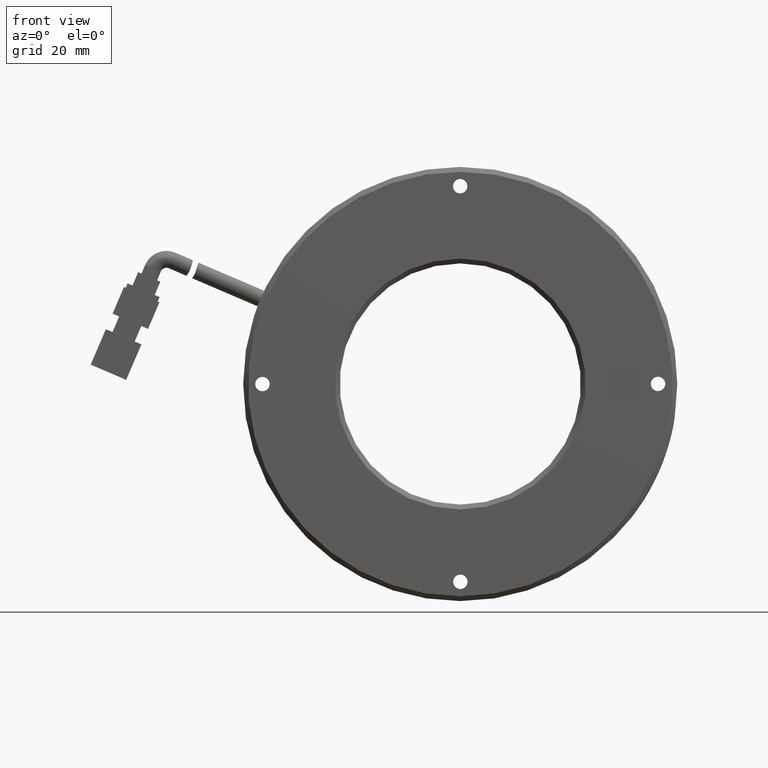
[diagram: clean part render]
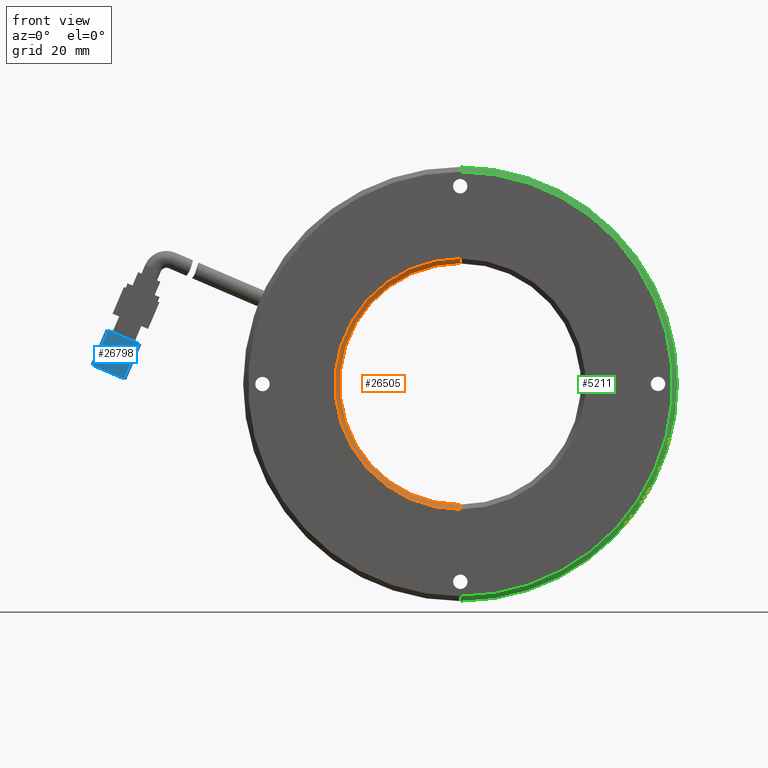
[diagram: same view with three faces highlighted in distinct colors, each labeled with its STEP entity id]
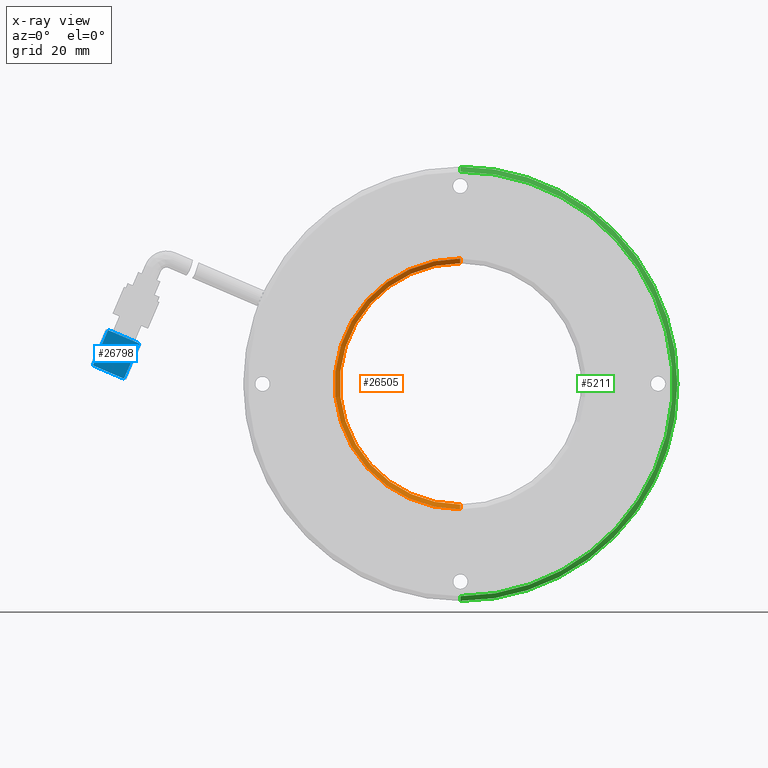
[diagram: x-ray of the same camera — body ghosted, the three highlighted faces saturated]
A machine part, front view with three faces highlighted in distinct colors.
The next image is the same camera in x-ray (body ghosted, the three faces saturated) — at least one of them is partly hidden behind the body in this view.
Their STEP definitions:

[orange] entity #26505 — the highlighted conical surface has half-angle 45 deg.
#1203 = CARTESIAN_POINT ( 'NONE',  ( 3.571428571428565800, -0.3764478764478815200, 0.0000000000000000000 ) ) ;
#1392 = DIRECTION ( 'NONE',  ( 8.659560562354857700E-017, -0.7071067811865536800, 0.7071067811865414700 ) ) ;
#2200 = CARTESIAN_POINT ( 'NONE',  ( 3.571428571428565800, -0.3764478764478824100, -25.00000000000000000 ) ) ;
#3245 = EDGE_LOOP ( 'NONE', ( #9136, #34782, #26172, #6424 ) ) ;
#3345 = VERTEX_POINT ( 'NONE', #2200 ) ;
#4046 = AXIS2_PLACEMENT_3D ( 'NONE', #11362, #33414, #14530 ) ;
#4349 = DIRECTION ( 'NONE',  ( 0.0000000000000000000, -3.469446951953614200E-017, -1.000000000000000000 ) ) ;
#6140 = DIRECTION ( 'NONE',  ( 0.0000000000000000000, 0.0000000000000000000, -1.000000000000000000 ) ) ;
#6424 = ORIENTED_EDGE ( 'NONE', *, *, #23720, .F. ) ;
#9136 = ORIENTED_EDGE ( 'NONE', *, *, #27737, .F. ) ;
#9162 = DIRECTION ( 'NONE',  ( 0.0000000000000000000, -1.000000000000000000, 0.0000000000000000000 ) ) ;
#9466 = CARTESIAN_POINT ( 'NONE',  ( 3.571428571428565800, -1.376447876447879400, -25.99999999999998200 ) ) ;
#9866 = LINE ( 'NONE', #39361, #26625 ) ;
#11362 = CARTESIAN_POINT ( 'NONE',  ( 3.571428571428565800, -1.376447876447878900, 0.0000000000000000000 ) ) ;
#12610 = DIRECTION ( 'NONE',  ( 0.0000000000000000000, -0.7071067811865536800, -0.7071067811865414700 ) ) ;
#14530 = DIRECTION ( 'NONE',  ( 0.0000000000000000000, 0.0000000000000000000, -1.000000000000000000 ) ) ;
#15387 = CIRCLE ( 'NONE', #25585, 25.00000000000000000 ) ;
#16420 = VERTEX_POINT ( 'NONE', #24353 ) ;
#18317 = EDGE_CURVE ( 'NONE', #16420, #18800, #33495, .T. ) ;
#18642 = AXIS2_PLACEMENT_3D ( 'NONE', #40535, #9162, #6140 ) ;
#18800 = VERTEX_POINT ( 'NONE', #29825 ) ;
#23031 = EDGE_CURVE ( 'NONE', #31933, #16420, #9866, .T. ) ;
#23248 = DIRECTION ( 'NONE',  ( 0.0000000000000000000, -1.000000000000000000, 0.0000000000000000000 ) ) ;
#23720 = EDGE_CURVE ( 'NONE', #3345, #18800, #33384, .T. ) ;
#24133 = FACE_OUTER_BOUND ( 'NONE', #3245, .T. ) ;
#24353 = CARTESIAN_POINT ( 'NONE',  ( 3.571428571428568500, -1.376447876447878900, 25.99999999999998200 ) ) ;
#25585 = AXIS2_PLACEMENT_3D ( 'NONE', #1203, #23248, #4349 ) ;
#26172 = ORIENTED_EDGE ( 'NONE', *, *, #18317, .T. ) ;
#26505 = ADVANCED_FACE ( 'NONE', ( #24133 ), #28505, .F. ) ;
#26625 = VECTOR ( 'NONE', #1392, 1000.000000000000000 ) ;
#27737 = EDGE_CURVE ( 'NONE', #31933, #3345, #15387, .T. ) ;
#28505 = CONICAL_SURFACE ( 'NONE', #18642, 25.99999999999998200, 0.7853981633974396200 ) ;
#29825 = CARTESIAN_POINT ( 'NONE',  ( 3.571428571428565800, -1.376447876447878900, -25.99999999999998200 ) ) ;
#31933 = VERTEX_POINT ( 'NONE', #32629 ) ;
#32629 = CARTESIAN_POINT ( 'NONE',  ( 3.571428571428568500, -0.3764478764478815200, 25.00000000000000000 ) ) ;
#33384 = LINE ( 'NONE', #9466, #40752 ) ;
#33414 = DIRECTION ( 'NONE',  ( 0.0000000000000000000, -1.000000000000000000, 0.0000000000000000000 ) ) ;
#33495 = CIRCLE ( 'NONE', #4046, 25.99999999999998200 ) ;
#34782 = ORIENTED_EDGE ( 'NONE', *, *, #23031, .T. ) ;
#39361 = CARTESIAN_POINT ( 'NONE',  ( 3.571428571428568500, -1.376447876447879400, 25.99999999999998200 ) ) ;
#40535 = CARTESIAN_POINT ( 'NONE',  ( 3.571428571428565800, -1.376447876447879400, 0.0000000000000000000 ) ) ;
#40752 = VECTOR ( 'NONE', #12610, 1000.000000000000000 ) ;

[blue] entity #26798 — the highlighted planar face has unit normal (-0, 1, 0).
#1517 = AXIS2_PLACEMENT_3D ( 'NONE', #4719, #26751, #7893 ) ;
#2307 = LINE ( 'NONE', #14442, #26449 ) ;
#4719 = CARTESIAN_POINT ( 'NONE',  ( -66.15216440466623700, -1.376447876447878900, 1.058575695860871400 ) ) ;
#7027 = CARTESIAN_POINT ( 'NONE',  ( -62.99995324374156500, -1.376447876447879800, 8.411368688795029400 ) ) ;
#7893 = DIRECTION ( 'NONE',  ( 0.3940263951155860100, -1.280570519271349500E-016, 0.9190991241167711900 ) ) ;
#8103 = VERTEX_POINT ( 'NONE', #8521 ) ;
#8521 = CARTESIAN_POINT ( 'NONE',  ( -69.43364711255897200, -1.376447876447879800, 11.16955345460414000 ) ) ;
#8977 = LINE ( 'NONE', #23574, #25721 ) ;
#9281 = EDGE_CURVE ( 'NONE', #28787, #8103, #30243, .T. ) ;
#10176 = DIRECTION ( 'NONE',  ( 0.9190991241167711900, 1.239088197126291100E-016, -0.3940263951155860100 ) ) ;
#14442 = CARTESIAN_POINT ( 'NONE',  ( -66.15216440466628000, -1.376447876447878900, 1.058575695860887200 ) ) ;
#17084 = PLANE ( 'NONE',  #1517 ) ;
#17095 = CARTESIAN_POINT ( 'NONE',  ( -72.58585827348365200, -1.376447876447878900, 3.816760461669980800 ) ) ;
#18204 = CARTESIAN_POINT ( 'NONE',  ( -72.58585827348366600, -1.376447876447878900, 3.816760461669979100 ) ) ;
#19517 = VERTEX_POINT ( 'NONE', #34071 ) ;
#20010 = LINE ( 'NONE', #7027, #27412 ) ;
#23574 = CARTESIAN_POINT ( 'NONE',  ( -66.15216440466623700, -1.376447876447878900, 1.058575695860871400 ) ) ;
#25721 = VECTOR ( 'NONE', #26456, 1000.000000000000100 ) ;
#25820 = VECTOR ( 'NONE', #39117, 1000.000000000000100 ) ;
#26449 = VECTOR ( 'NONE', #36478, 1000.000000000000100 ) ;
#26456 = DIRECTION ( 'NONE',  ( -0.9190991241167711900, -1.239088197126291100E-016, 0.3940263951155860100 ) ) ;
#26751 = DIRECTION ( 'NONE',  ( -6.342662912824196000E-017, 1.000000000000000000, 1.665204698175999300E-016 ) ) ;
#26798 = ADVANCED_FACE ( 'NONE', ( #35357 ), #17084, .F. ) ;
#27412 = VECTOR ( 'NONE', #10176, 1000.000000000000100 ) ;
#28787 = VERTEX_POINT ( 'NONE', #18204 ) ;
#28823 = EDGE_LOOP ( 'NONE', ( #31774, #37691, #35978, #34305 ) ) ;
#29044 = CARTESIAN_POINT ( 'NONE',  ( -66.15216440466625200, -1.376447876447878900, 1.058575695860878500 ) ) ;
#30243 = LINE ( 'NONE', #17095, #25820 ) ;
#31774 = ORIENTED_EDGE ( 'NONE', *, *, #9281, .F. ) ;
#31850 = VERTEX_POINT ( 'NONE', #29044 ) ;
#33476 = EDGE_CURVE ( 'NONE', #8103, #19517, #20010, .T. ) ;
#34071 = CARTESIAN_POINT ( 'NONE',  ( -62.99995324374157900, -1.376447876447879800, 8.411368688795040100 ) ) ;
#34305 = ORIENTED_EDGE ( 'NONE', *, *, #33476, .F. ) ;
#34439 = EDGE_CURVE ( 'NONE', #31850, #28787, #8977, .T. ) ;
#35357 = FACE_OUTER_BOUND ( 'NONE', #28823, .T. ) ;
#35978 = ORIENTED_EDGE ( 'NONE', *, *, #36287, .F. ) ;
#36287 = EDGE_CURVE ( 'NONE', #19517, #31850, #2307, .T. ) ;
#36478 = DIRECTION ( 'NONE',  ( -0.3940263951155860100, 1.280570519271349500E-016, -0.9190991241167711900 ) ) ;
#37691 = ORIENTED_EDGE ( 'NONE', *, *, #34439, .F. ) ;
#39117 = DIRECTION ( 'NONE',  ( 0.3940263951155860100, -1.280570519271349500E-016, 0.9190991241167711900 ) ) ;

[green] entity #5211 — the highlighted conical surface has half-angle 45 deg.
#12 = EDGE_CURVE ( 'NONE', #20141, #30298, #37455, .T. ) ;
#1617 = EDGE_CURVE ( 'NONE', #20141, #33394, #23441, .T. ) ;
#1987 = EDGE_CURVE ( 'NONE', #27420, #30298, #6603, .T. ) ;
#3947 = VECTOR ( 'NONE', #27790, 1000.000000000000000 ) ;
#4896 = ORIENTED_EDGE ( 'NONE', *, *, #15125, .T. ) ;
#5054 = DIRECTION ( 'NONE',  ( 0.0000000000000000000, 3.373073425510458600E-017, 1.000000000000000000 ) ) ;
#5170 = DIRECTION ( 'NONE',  ( 0.0000000000000000000, 0.0000000000000000000, 1.000000000000000000 ) ) ;
#5193 = DIRECTION ( 'NONE',  ( -0.0000000000000000000, -1.000000000000000000, -0.0000000000000000000 ) ) ;
#5211 = ADVANCED_FACE ( 'NONE', ( #40294 ), #26995, .T. ) ;
#5329 = CARTESIAN_POINT ( 'NONE',  ( 3.571428571428565800, -0.3764478764478641500, 0.0000000000000000000 ) ) ;
#5369 = AXIS2_PLACEMENT_3D ( 'NONE', #8336, #5866, #5170 ) ;
#5866 = DIRECTION ( 'NONE',  ( -0.0000000000000000000, 1.000000000000000000, 0.0000000000000000000 ) ) ;
#6603 = CIRCLE ( 'NONE', #17755, 44.99999999999999300 ) ;
#6947 = LINE ( 'NONE', #8454, #22710 ) ;
#8336 = CARTESIAN_POINT ( 'NONE',  ( 3.571428571428565800, -1.376447876447878900, 0.0000000000000000000 ) ) ;
#8454 = CARTESIAN_POINT ( 'NONE',  ( 3.571428571428571200, -0.3764478764478635400, -45.00000000000000000 ) ) ;
#11596 = DIRECTION ( 'NONE',  ( 8.659560562354870000E-017, 0.7071067811865526800, -0.7071067811865423500 ) ) ;
#13379 = EDGE_LOOP ( 'NONE', ( #33916, #4896, #17927, #21242 ) ) ;
#15125 = EDGE_CURVE ( 'NONE', #33394, #27420, #6947, .T. ) ;
#17512 = CARTESIAN_POINT ( 'NONE',  ( 3.571428571428565800, -1.376447876447878900, 44.00000000000000000 ) ) ;
#17755 = AXIS2_PLACEMENT_3D ( 'NONE', #5329, #5193, #5054 ) ;
#17927 = ORIENTED_EDGE ( 'NONE', *, *, #1987, .T. ) ;
#20141 = VERTEX_POINT ( 'NONE', #17512 ) ;
#21242 = ORIENTED_EDGE ( 'NONE', *, *, #12, .F. ) ;
#21476 = CARTESIAN_POINT ( 'NONE',  ( 3.571428571428565800, -0.3764478764478641500, -45.00000000000000000 ) ) ;
#22372 = AXIS2_PLACEMENT_3D ( 'NONE', #34362, #33903, #33080 ) ;
#22710 = VECTOR ( 'NONE', #11596, 1000.000000000000000 ) ;
#23441 = CIRCLE ( 'NONE', #5369, 44.00000000000000000 ) ;
#26784 = CARTESIAN_POINT ( 'NONE',  ( 3.571428571428571200, -0.3764478764478641500, 45.00000000000000000 ) ) ;
#26995 = CONICAL_SURFACE ( 'NONE', #22372, 45.00000000000000000, 0.7853981633974410600 ) ;
#27420 = VERTEX_POINT ( 'NONE', #21476 ) ;
#27790 = DIRECTION ( 'NONE',  ( 0.0000000000000000000, 0.7071067811865526800, 0.7071067811865423500 ) ) ;
#28194 = CARTESIAN_POINT ( 'NONE',  ( 3.571428571428565800, -0.3764478764478635400, 45.00000000000000000 ) ) ;
#30298 = VERTEX_POINT ( 'NONE', #26784 ) ;
#33080 = DIRECTION ( 'NONE',  ( 0.0000000000000000000, 0.0000000000000000000, 1.000000000000000000 ) ) ;
#33394 = VERTEX_POINT ( 'NONE', #37715 ) ;
#33903 = DIRECTION ( 'NONE',  ( -0.0000000000000000000, 1.000000000000000000, 0.0000000000000000000 ) ) ;
#33916 = ORIENTED_EDGE ( 'NONE', *, *, #1617, .T. ) ;
#34362 = CARTESIAN_POINT ( 'NONE',  ( 3.571428571428565800, -0.3764478764478635400, 0.0000000000000000000 ) ) ;
#37455 = LINE ( 'NONE', #28194, #3947 ) ;
#37715 = CARTESIAN_POINT ( 'NONE',  ( 3.571428571428570700, -1.376447876447878900, -44.00000000000000000 ) ) ;
#40294 = FACE_OUTER_BOUND ( 'NONE', #13379, .T. ) ;